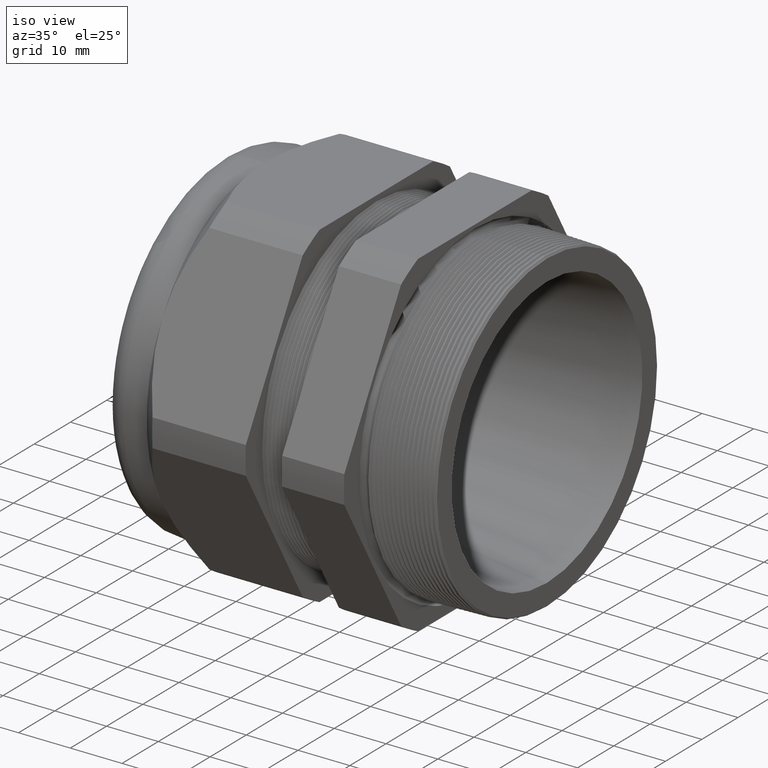
[diagram: clean part render]
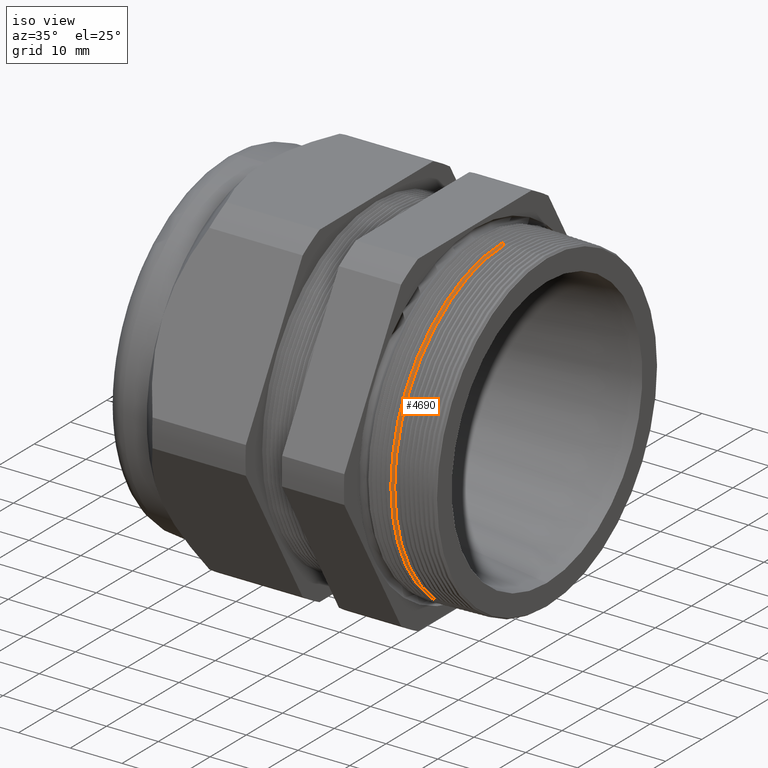
[diagram: same view with one face highlighted and labeled with its STEP entity id]
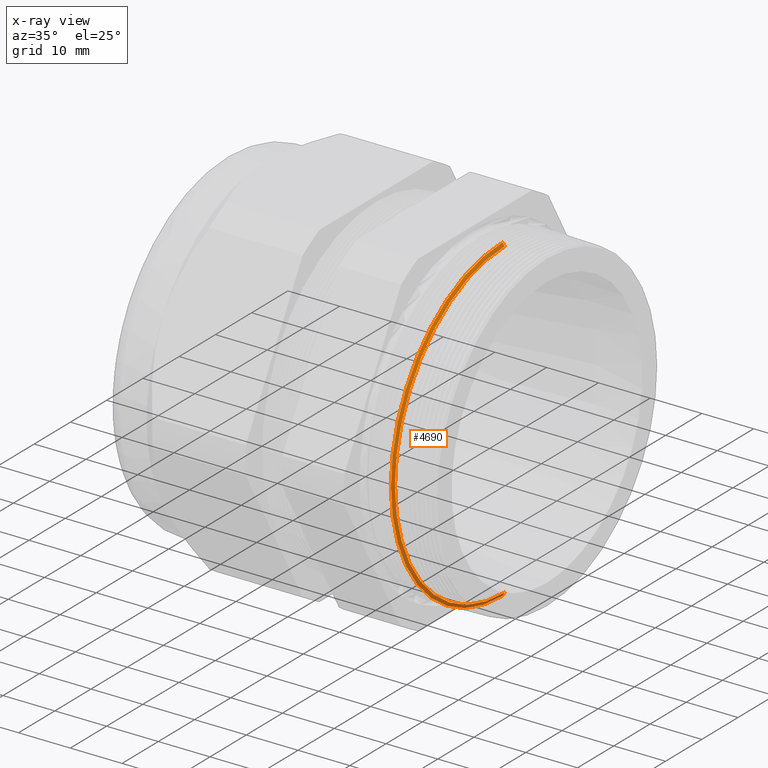
[diagram: x-ray of the same camera — body ghosted, the highlighted face saturated]
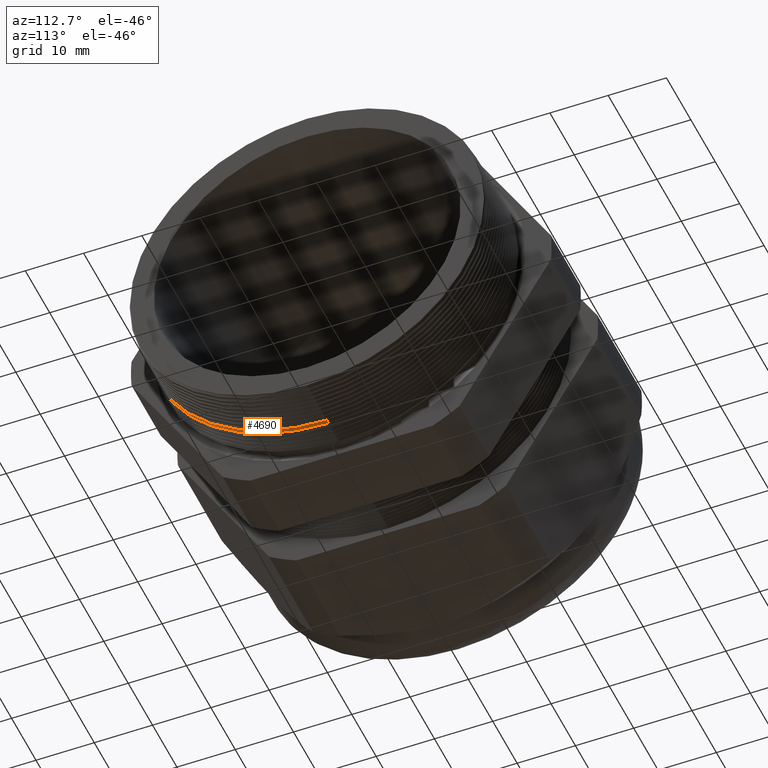
[diagram: same view with one face highlighted and labeled with its STEP entity id]
A machine part, iso view. The second image highlights one B-rep face of the part: STEP entity #4690.
The next image is the same camera in x-ray: the body ghosted, the highlighted face saturated — about 5% of this face is hidden behind the body in this view.
A second angle (auxiliary view) of the same face is appended — the face is thin or edge-on in the first view.
In plain terms, the highlighted conical surface has half-angle 61.5 deg.
Its self-contained STEP definition (entity closure, byte-faithful):
#206 = VERTEX_POINT ( 'NONE', #748 ) ;
#748 = CARTESIAN_POINT ( 'NONE',  ( -0.08347073567907530000, 1.472492253630925300E-016, -1.189948790814587800 ) ) ;
#1268 = CARTESIAN_POINT ( 'NONE',  ( -0.08347073567907530000, 0.0000000000000000000, 1.189948790814587800 ) ) ;
#1384 = DIRECTION ( 'NONE',  ( -0.4771587602596173400, 1.076240564057388800E-016, -0.8788171126619606100 ) ) ;
#1385 = VECTOR ( 'NONE', #1384, 39.37007874015748900 ) ;
#1386 = CARTESIAN_POINT ( 'NONE',  ( -0.09999999999999996400, 1.494549044582627900E-016, -1.220391908608417600 ) ) ;
#1391 = LINE ( 'NONE', #1386, #1385 ) ;
#1406 = CARTESIAN_POINT ( 'NONE',  ( -0.09697120011612875300, 1.487816356327030000E-016, -1.214813553162682500 ) ) ;
#1514 = CARTESIAN_POINT ( 'NONE',  ( -0.09697120011612875300, 0.0000000000000000000, 0.0000000000000000000 ) ) ;
#1568 = DIRECTION ( 'NONE',  ( 0.0000000000000000000, 0.0000000000000000000, 1.000000000000000000 ) ) ;
#1569 = DIRECTION ( 'NONE',  ( 1.000000000000000000, 0.0000000000000000000, 0.0000000000000000000 ) ) ;
#1570 = AXIS2_PLACEMENT_3D ( 'NONE', #1514, #1569, #1568 ) ;
#1571 = CIRCLE ( 'NONE', #1570, 1.214813553162682500 ) ;
#1802 = DIRECTION ( 'NONE',  ( -0.4771587602596173400, 0.0000000000000000000, 0.8788171126619606100 ) ) ;
#1803 = VECTOR ( 'NONE', #1802, 39.37007874015748900 ) ;
#1804 = CARTESIAN_POINT ( 'NONE',  ( -0.09999999999999996400, 0.0000000000000000000, 1.220391908608417600 ) ) ;
#1805 = LINE ( 'NONE', #1804, #1803 ) ;
#1810 = CARTESIAN_POINT ( 'NONE',  ( -0.09697120011612875300, 0.0000000000000000000, 1.214813553162682500 ) ) ;
#2714 = CONICAL_SURFACE ( 'NONE', #2775, 1.220391908608417600, 1.073377489976502500 ) ;
#2715 = FACE_OUTER_BOUND ( 'NONE', #4681, .T. ) ;
#2727 = DIRECTION ( 'NONE',  ( 0.0000000000000000000, 0.0000000000000000000, -1.000000000000000000 ) ) ;
#2728 = DIRECTION ( 'NONE',  ( 1.000000000000000000, 0.0000000000000000000, 0.0000000000000000000 ) ) ;
#2729 = CARTESIAN_POINT ( 'NONE',  ( -0.08347073567907530000, 0.0000000000000000000, 0.0000000000000000000 ) ) ;
#2730 = AXIS2_PLACEMENT_3D ( 'NONE', #2729, #2728, #2727 ) ;
#2735 = CIRCLE ( 'NONE', #2730, 1.189948790814587800 ) ;
#2772 = DIRECTION ( 'NONE',  ( 0.0000000000000000000, 0.0000000000000000000, 1.000000000000000000 ) ) ;
#2773 = DIRECTION ( 'NONE',  ( -1.000000000000000000, 0.0000000000000000000, 0.0000000000000000000 ) ) ;
#2774 = CARTESIAN_POINT ( 'NONE',  ( -0.09999999999999996400, 0.0000000000000000000, 0.0000000000000000000 ) ) ;
#2775 = AXIS2_PLACEMENT_3D ( 'NONE', #2774, #2773, #2772 ) ;
#2915 = VERTEX_POINT ( 'NONE', #1268 ) ;
#3947 = VERTEX_POINT ( 'NONE', #1406 ) ;
#3960 = EDGE_CURVE ( 'NONE', #206, #3947, #1391, .T. ) ;
#4067 = EDGE_CURVE ( 'NONE', #4200, #3947, #1571, .T. ) ;
#4200 = VERTEX_POINT ( 'NONE', #1810 ) ;
#4204 = EDGE_CURVE ( 'NONE', #2915, #4200, #1805, .T. ) ;
#4676 = ORIENTED_EDGE ( 'NONE', *, *, #4684, .F. ) ;
#4677 = ORIENTED_EDGE ( 'NONE', *, *, #3960, .F. ) ;
#4681 = EDGE_LOOP ( 'NONE', ( #4677, #4676, #4728, #4740 ) ) ;
#4684 = EDGE_CURVE ( 'NONE', #2915, #206, #2735, .T. ) ;
#4690 = ADVANCED_FACE ( 'NONE', ( #2715 ), #2714, .T. ) ;
#4728 = ORIENTED_EDGE ( 'NONE', *, *, #4204, .T. ) ;
#4740 = ORIENTED_EDGE ( 'NONE', *, *, #4067, .T. ) ;